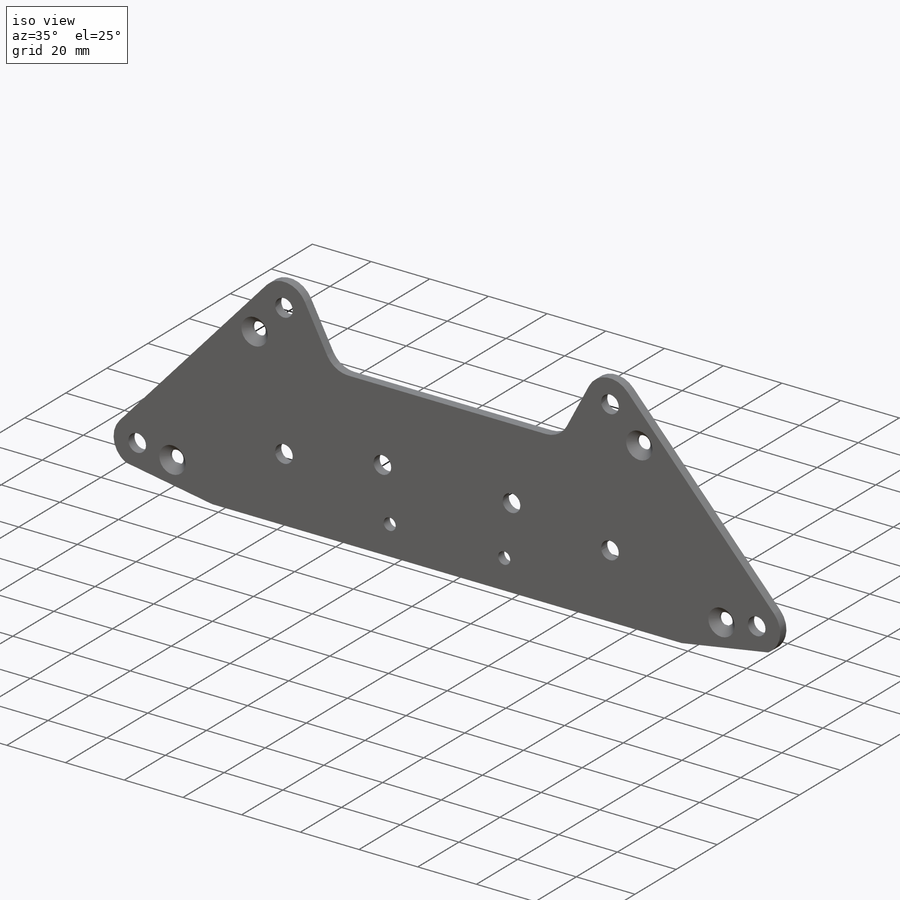
[diagram: iso view]
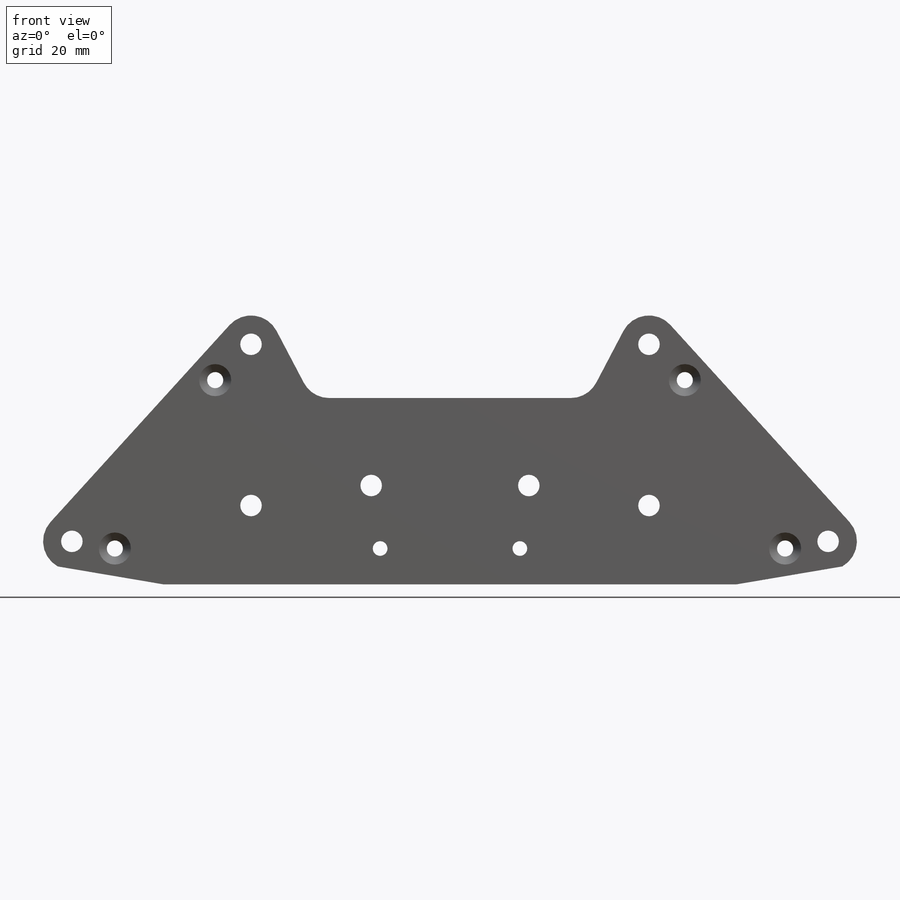
[diagram: front view]
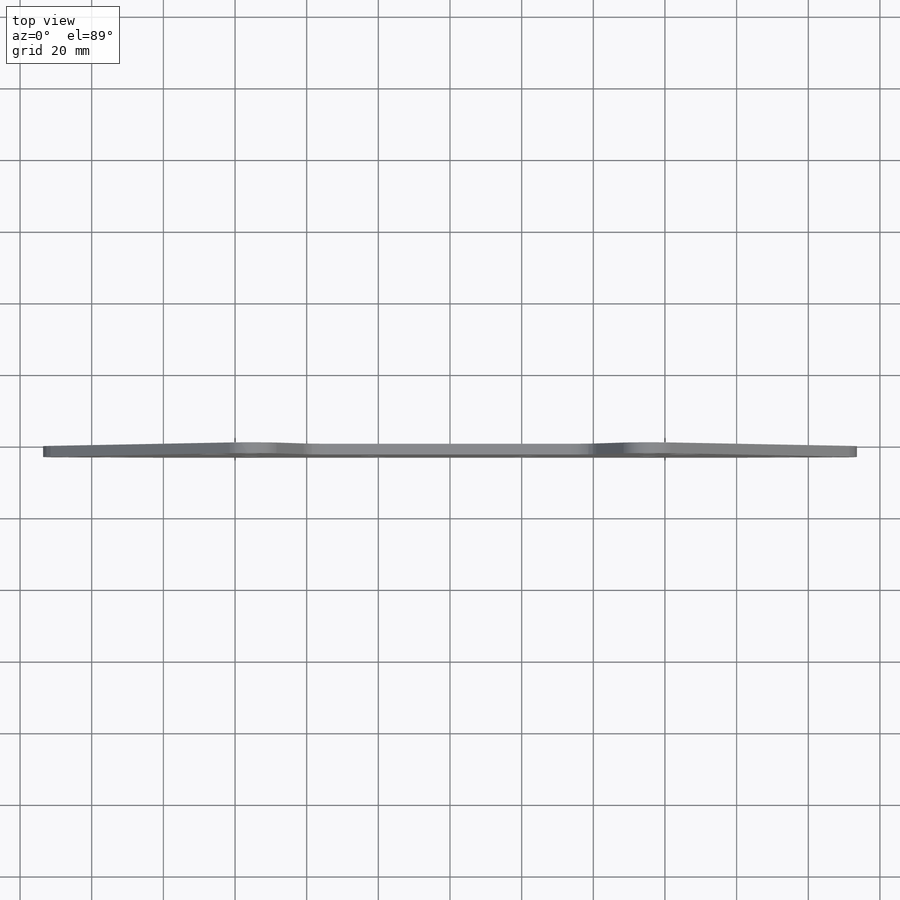
[diagram: top view]
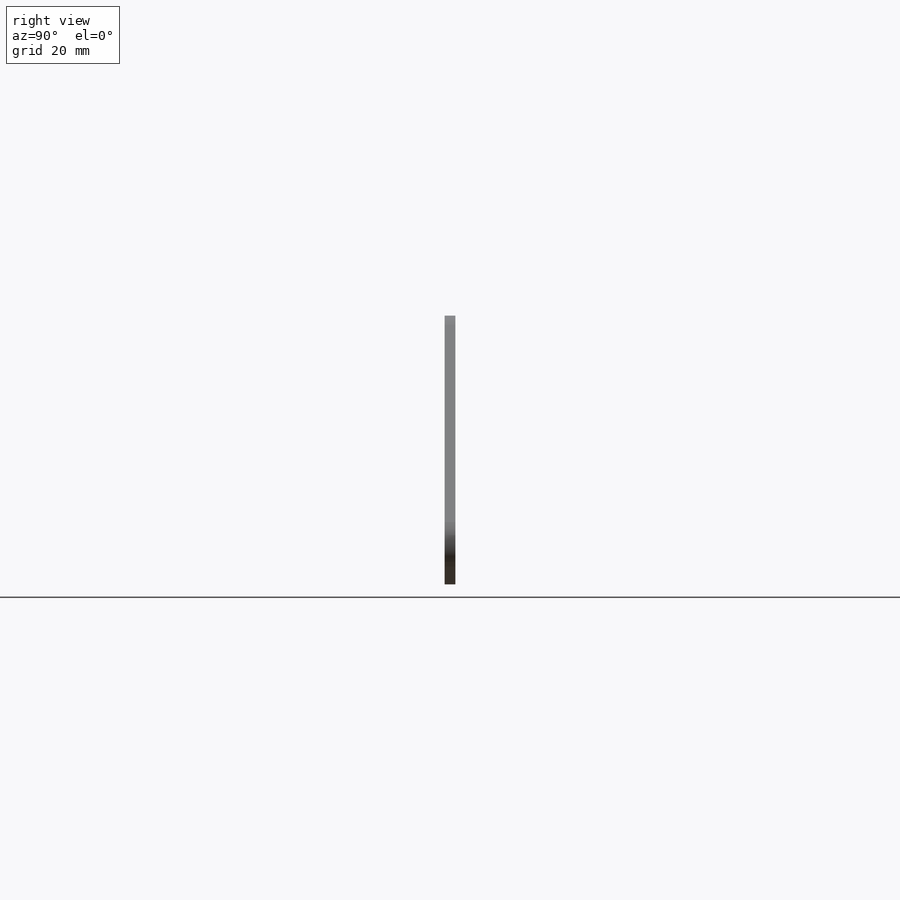
[diagram: right view]
SOLIDWORKS PART (.sldprt)
format: sldprt  version: not decoded by parser v0  size: 681,472 bytes
history: native  units: mm
features: sketch x6, cut_extrude x3, material x1, extrude x1, hole x1 (+11 scaffold rows collapsed)
feature tree (23):
  scaffold x11  (default folders/planes/origin — collapsed)
  material  "Material <not specified>"
  sketch  "Sketch2"  dims[c1.D1=5.0mm c1.D2=2.1mm c1.D3=2.1mm c1.D4=2.1mm c1.D9=8.0mm c1.D10=~3.974452mm c1.D15=2.1mm c1.D18=2.1mm c1.D13=1.5mm c1.D14=5.0mm c2.D15=5.0mm c2.D2=50.0mm c2.D3=10.0mm c2.D4=55.0mm c2.D5=10.0mm c2.D6=55.0mm c2.D7=50.0mm c2.D8=175.0mm c2.D9=~25.464864mm c3.D9=50.0deg c3.D10=10.0mm c3.D11=~18.006052mm c4.D10=~14.602601mm c5.D10=70.0deg c5.D11=27.5mm c6.D11=70.0deg c6.D12=50.0mm c6.D13=~21.702147mm c7.D13=~179.61672deg c8.D13=~2.497277mm c8.D16=8.0mm c8.D14=~5.657692mm c9.D16=8.0mm c9.D15=~2.712511mm c10.D16=~23.410741mm c11.D16=~179.509326deg c12.D16=~2.133501mm c12.D13=8.0mm c12.D17=~3.405965mm c13.D13=8.0mm c13.D18=~2.690183mm c14.D13=8.0mm c14.D17=4.0mm c14.D14=38.0mm c14.D15=38.0mm c14.D2=~45.704939mm c14.D3=~45.704939mm c14.D4=~50.275433mm c15.D2=~227.07296mm c15.D3=71.0mm c15.D4=~69.666146mm c16.D2=12.0mm c16.D3=40.0mm c16.D4=80.0mm c16.D5=5.0mm c16.D6=80.0mm c16.D7=5.0mm]
  extrude  "Plate"  Depth=3mm
  sketch  "Sketch4"  dims[c1.D1=6.0mm c1.D2=2.1mm c1.D3=2.1mm c1.D4=2.1mm c1.D9=5.0mm c1.D10=~3.974452mm c1.D15=2.1mm c1.D18=2.1mm c1.D13=1.5mm c1.D14=5.0mm c2.D15=5.0mm c2.D9=5.0mm c2.D3=6.0mm c2.D4=6.0mm c2.D5=6.0mm c2.D6=6.0mm c2.D7=6.0mm c2.D8=6.0mm c3.D7=6.0mm c3.D9=6.0mm c3.D6=6.0mm c3.D2=6.0mm c3.D3=6.0mm c3.D4=6.0mm c3.D5=6.0mm c4.D7=6.0mm c4.D8=6.0mm c4.D9=6.0mm c4.D10=6.0mm c4.D11=6.0mm c4.D2=~29.203472mm c5.D7=50.0mm c5.D3=~10.746144mm c6.D7=10.0mm c6.D4=~29.656899mm c7.D7=55.0mm c7.D5=10.0mm c7.D6=55.0mm c8.D7=~24.591247mm c8.D6=50.0mm c8.D8=175.0mm c8.D9=~25.464864mm c9.D9=50.0deg c9.D10=10.0mm c9.D11=~18.006052mm c10.D10=~14.602601mm c11.D10=70.0deg c11.D11=27.5mm c12.D11=70.0deg c12.D12=35.0mm c12.D13=~21.702147mm c13.D13=~179.61672deg c14.D13=~2.497277mm c14.D11=8.0mm c14.D14=~5.657692mm c15.D11=8.0mm c15.D15=~2.712511mm c16.D11=8.0mm c16.D16=~23.410741mm c17.D16=~179.509326deg c18.D16=~2.133501mm c18.D10=8.0mm c18.D17=~3.405965mm c18.D11=8.0mm c18.D18=~2.690183mm c19.D10=8.0mm c19.D17=4.0mm c19.D14=58.0mm c19.D15=58.0mm c19.D9=2.0mm c19.D2=8.0mm c19.D3=~211.07296mm c19.D6=~211.07296mm c20.D3=~25.248605mm c20.D4=~21.423003mm c20.D5=58.0mm c20.D6=58.0mm c20.D7=28.5mm c20.D8=28.5mm c21.D7=~55.606669mm c21.D9=~32.381514mm c21.D3=22.5mm c21.D8=~36.14866mm c22.D3=22.5mm c22.D5=30.0mm c22.D6=10.0mm c22.D2=10.0mm c23.D3=25.0mm c23.D4=25.0mm c23.D5=~55.53648mm c23.D7=~55.53648mm c23.D8=~21.998408mm c23.D9=~21.998408mm c23.D10=45.0mm c23.D11=45.0mm]
  cut_extrude  "Pivot holes (arm)"  [1 undecoded]
  sketch  "Sketch11"  dims[c1.D1=6.0mm c1.D2=2.1mm c1.D3=2.1mm c1.D4=2.1mm c1.D9=5.0mm c1.D10=~3.974452mm c1.D15=2.1mm c1.D18=2.1mm c1.D13=1.5mm c1.D14=5.0mm c2.D15=5.0mm c2.D9=5.0mm c2.D3=10.0mm c2.D1=10.0mm c2.D2=50.0mm c3.D3=~10.746144mm c3.D2=10.0mm c3.D4=~29.656899mm c4.D2=55.0mm c4.D5=10.0mm c5.D2=10.0mm c5.D6=27.5mm c6.D2=55.0mm c6.D7=~24.591247mm c7.D2=50.0mm c7.D8=175.0mm c7.D9=~25.464864mm c8.D9=50.0deg c8.D10=10.0mm c8.D11=~18.006052mm c9.D10=~14.602601mm c10.D10=70.0deg c10.D11=27.5mm c11.D11=70.0deg c11.D12=35.0mm c11.D13=~21.702147mm c12.D13=~179.61672deg c13.D13=~2.497277mm c13.D11=8.0mm c13.D14=~5.657692mm c14.D11=8.0mm c14.D15=~2.712511mm c15.D11=8.0mm c15.D16=~23.410741mm c16.D16=~179.509326deg c17.D16=~2.133501mm c17.D10=8.0mm c17.D17=~3.405965mm c17.D11=8.0mm c17.D18=~2.690183mm c18.D10=8.0mm c18.D17=4.0mm c18.D14=58.0mm c18.D15=58.0mm c18.D9=2.0mm c18.D2=8.0mm c18.D3=~211.07296mm c19.D2=~211.07296mm c19.D1=58.0mm c20.D2=58.0mm]
  cut_extrude  "Inner plate drive hole"  [1 undecoded]
  sketch  "Sketch5"  dims[c1.D1=4.5mm c1.D2=4.5mm c1.D3=4.5mm c1.D5=4.5mm c2.D1=4.5mm c2.D2=4.1mm c3.D1=14.0mm c3.D2=2.0mm c3.D4=14.0mm c3.D5=3.0mm c3.D6=19.5mm c3.D7=19.5mm c4.D1=91.5mm c4.D4=91.5mm c5.D1=2.0mm]
  cut_extrude  "Chassis holes"  [1 undecoded]
  hole  "CSK for M4 SFHCS1"  Diameter=4.5mm Depth=3mm
  sketch  "Sketch8"  dims[c1.D1=12.0mm c1.D2=2.0mm c1.D3=40.0mm c1.D4=45.0mm c1.D5=12.0mm c1.D6=2.0mm c1.D7=45.0mm c1.D8=40.0mm c1.D9=6.0mm c2.D1=12.0mm c2.D2=2.0mm c2.D3=40.0mm c2.D4=45.0mm]
  sketch  "Sketch7"  dims[hole-wizard template sketch: 55 standard entries collapsed; hole parameters kept: c17.Thru Hole Depth=3.0mm c17.Near C'Sink Dia.=8.96mm c17.D4=~3.666174mm c17.Near C'Sink Angle=90.0deg]
decode coverage: 8 of 11 modeling features carry decoded parameters
note: ~ marks probable driven/reference dimensions
note: 3 parameter values undecoded
summary: no parameter record found for 3 features
note: suppression state not decoded; provenance and decode notes live in map.json
